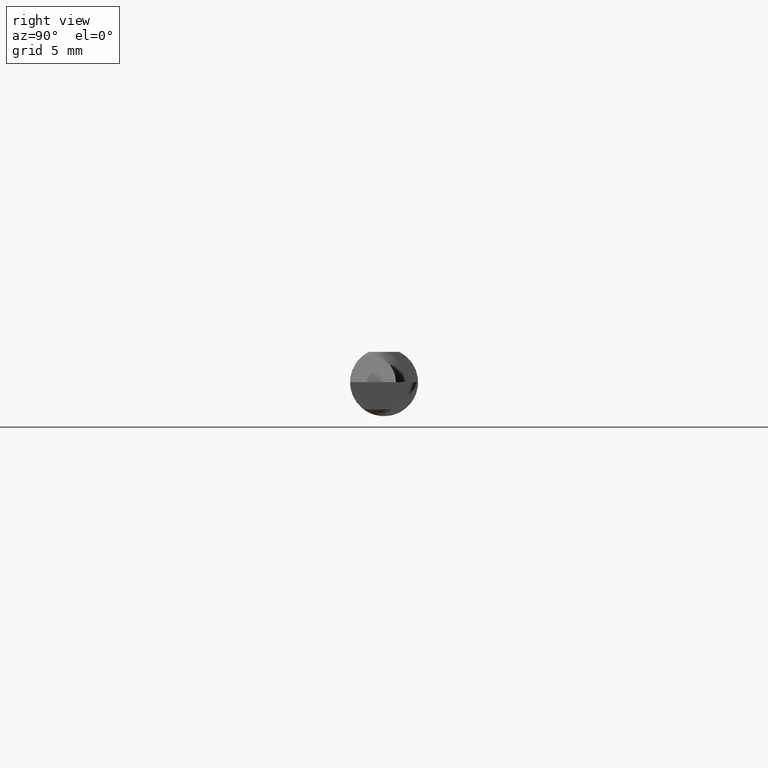
[diagram: clean part render]
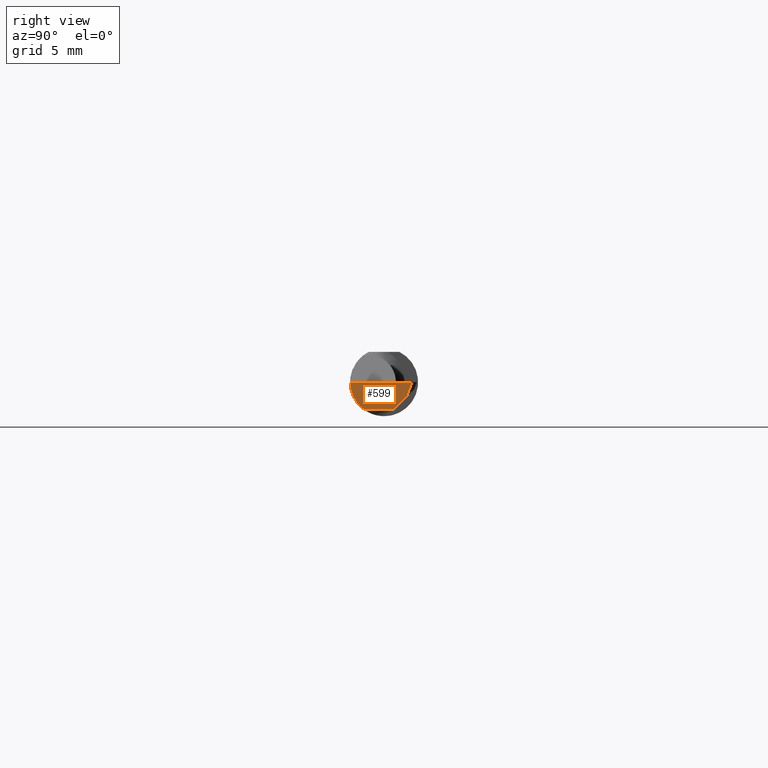
[diagram: same view with one face highlighted and labeled with its STEP entity id]
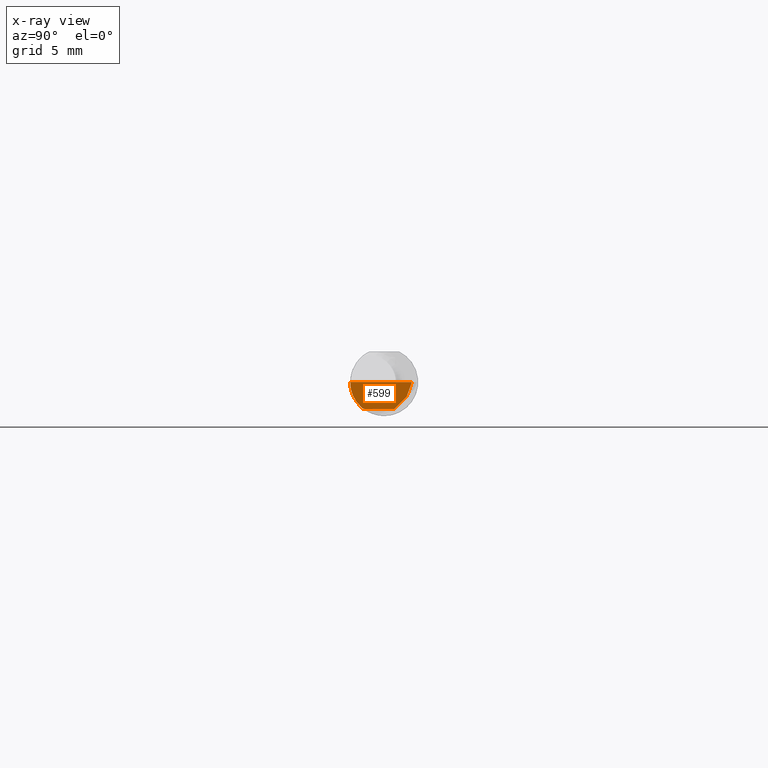
[diagram: x-ray of the same camera — body ghosted, the highlighted face saturated]
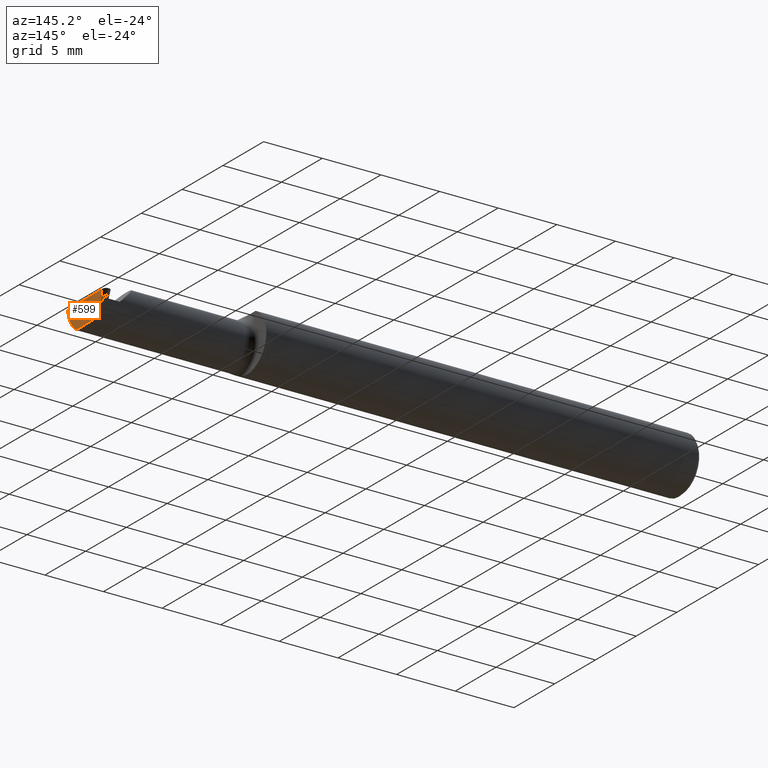
[diagram: same view with one face highlighted and labeled with its STEP entity id]
A machine part, right view. The second image highlights one B-rep face of the part: STEP entity #599.
The next image is the same camera in x-ray: the body ghosted, the highlighted face saturated — about 0% of this face is hidden behind the body in this view.
A second angle (auxiliary view) of the same face is appended — the face is thin or edge-on in the first view.
In plain terms, the highlighted planar face has unit normal (-0.9992, 0.0174, 0.0349).
Its self-contained STEP definition (entity closure, byte-faithful):
#10 = DIRECTION ( 'NONE',  ( -0.01745240643727441823, -0.9998476951563912696, 0.000000000000000000 ) ) ;
#16 = CARTESIAN_POINT ( 'NONE',  ( 1.996507080450274474, 0.02748456554894272708, -0.07500000000000002498 ) ) ;
#25 = CARTESIAN_POINT ( 'NONE',  ( 1.995069675717878299, -0.05810704225352106983, -0.07337936794867833123 ) ) ;
#43 = ORIENTED_EDGE ( 'NONE', *, *, #350, .F. ) ;
#54 = CARTESIAN_POINT ( 'NONE',  ( 1.999986840374342822, 0.07677130609030106967, 0.000000000000000000 ) ) ;
#55 = VERTEX_POINT ( 'NONE', #463 ) ;
#74 = CARTESIAN_POINT ( 'NONE',  ( 1.995192704155888785, -0.04781600192481509637, -0.07500000000000006661 ) ) ;
#77 = CARTESIAN_POINT ( 'NONE',  ( 1.995996405735428469, -0.09359999999999997489, -0.02910696448121681199 ) ) ;
#88 = CARTESIAN_POINT ( 'NONE',  ( 1.995069675717878299, -0.05810704225352106983, -0.07337936794867833123 ) ) ;
#98 = EDGE_CURVE ( 'NONE', #620, #123, #603, .T. ) ;
#123 = VERTEX_POINT ( 'NONE', #652 ) ;
#168 = DIRECTION ( 'NONE',  ( -0.03701368837992301264, -0.7066222423871552083, -0.7066222423871628688 ) ) ;
#174 = VECTOR ( 'NONE', #500, 39.37007874015747433 ) ;
#180 = ORIENTED_EDGE ( 'NONE', *, *, #340, .T. ) ;
#184 = VERTEX_POINT ( 'NONE', #54 ) ;
#207 = PLANE ( 'NONE',  #209 ) ;
#209 = AXIS2_PLACEMENT_3D ( 'NONE', #437, #559, #503 ) ;
#225 = DIRECTION ( 'NONE',  ( 0.03876062227022269990, 0.3417631236437463915, 0.9389864650134709390 ) ) ;
#226 = CARTESIAN_POINT ( 'NONE',  ( 1.995302472377616931, -0.08092595952420821026, -0.05530971394246247952 ) ) ;
#275 = EDGE_CURVE ( 'NONE', #325, #620, #401, .T. ) ;
#276 = ORIENTED_EDGE ( 'NONE', *, *, #622, .T. ) ;
#290 = CARTESIAN_POINT ( 'NONE',  ( 1.995283749808152374, -0.04259999999999973530, -0.07500000000000002498 ) ) ;
#293 = CARTESIAN_POINT ( 'NONE',  ( 1.997012998164632958, -0.09360000000000001652, 0.000000000000000000 ) ) ;
#299 = ORIENTED_EDGE ( 'NONE', *, *, #275, .F. ) ;
#325 = VERTEX_POINT ( 'NONE', #334 ) ;
#331 = VECTOR ( 'NONE', #168, 39.37007874015748143 ) ;
#334 = CARTESIAN_POINT ( 'NONE',  ( 1.998318014211375448, 0.06205680439066463272, -0.04042776115827773770 ) ) ;
#336 = ORIENTED_EDGE ( 'NONE', *, *, #98, .F. ) ;
#337 = LINE ( 'NONE', #396, #174 ) ;
#340 = EDGE_CURVE ( 'NONE', #391, #123, #392, .T. ) ;
#345 = EDGE_LOOP ( 'NONE', ( #299, #276, #375, #43, #180, #336 ) ) ;
#350 = EDGE_CURVE ( 'NONE', #391, #55, #611, .T. ) ;
#375 = ORIENTED_EDGE ( 'NONE', *, *, #656, .T. ) ;
#391 = VERTEX_POINT ( 'NONE', #88 ) ;
#392 =( BOUNDED_CURVE ( )  B_SPLINE_CURVE ( 3, ( #507, #397, #74, #290 ),
 .UNSPECIFIED., .F., .F. ) 
 B_SPLINE_CURVE_WITH_KNOTS ( ( 4, 4 ),
 ( 0.2552020043920343317, 0.4634648172052940329 ),
 .UNSPECIFIED. ) 
 CURVE ( )  GEOMETRIC_REPRESENTATION_ITEM ( )  RATIONAL_B_SPLINE_CURVE ( ( 1.000000000000000000, 0.9963888149483994816, 0.9963888149483994816, 1.000000000000000000 ) ) 
 REPRESENTATION_ITEM ( '' )  );
#396 = CARTESIAN_POINT ( 'NONE',  ( 1.999998056073120534, 0.07741385304294044756, 0.000000000000000000 ) ) ;
#397 = CARTESIAN_POINT ( 'NONE',  ( 1.995121087504817758, -0.05300374992736048979, -0.07445783144524577291 ) ) ;
#400 = LINE ( 'NONE', #660, #698 ) ;
#401 = LINE ( 'NONE', #450, #331 ) ;
#437 = CARTESIAN_POINT ( 'NONE',  ( 1.999998056073120534, 0.07741385304294044756, 0.000000000000000000 ) ) ;
#450 = CARTESIAN_POINT ( 'NONE',  ( 1.996701111497402481, 0.03118878038446752654, -0.07129578516447518388 ) ) ;
#463 = CARTESIAN_POINT ( 'NONE',  ( 1.997012998164632958, -0.09360000000000001652, 0.000000000000000000 ) ) ;
#491 = FACE_OUTER_BOUND ( 'NONE', #345, .T. ) ;
#500 = DIRECTION ( 'NONE',  ( -0.01745240643727442170, -0.9998476951563914916, 0.000000000000000000 ) ) ;
#503 = DIRECTION ( 'NONE',  ( 0.03490480639812536257, 0.000000000000000000, 0.9993906415863165194 ) ) ;
#507 = CARTESIAN_POINT ( 'NONE',  ( 1.995069675717878299, -0.05810704225352106983, -0.07337936794867833123 ) ) ;
#559 = DIRECTION ( 'NONE',  ( -0.9992386149554827179, 0.01744177490282107154, 0.03489949670250104552 ) ) ;
#595 = VECTOR ( 'NONE', #10, 39.37007874015748854 ) ;
#599 = ADVANCED_FACE ( 'NONE', ( #491 ), #207, .F. ) ;
#603 = LINE ( 'NONE', #648, #595 ) ;
#611 =( BOUNDED_CURVE ( )  B_SPLINE_CURVE ( 3, ( #25, #226, #77, #293 ),
 .UNSPECIFIED., .F., .F. ) 
 B_SPLINE_CURVE_WITH_KNOTS ( ( 4, 4 ),
 ( 0.2063001339125775657, 1.107331509589607910 ),
 .UNSPECIFIED. ) 
 CURVE ( )  GEOMETRIC_REPRESENTATION_ITEM ( )  RATIONAL_B_SPLINE_CURVE ( ( 1.000000000000000000, 0.9334817841311873199, 0.9334817841311873199, 1.000000000000000000 ) ) 
 REPRESENTATION_ITEM ( '' )  );
#620 = VERTEX_POINT ( 'NONE', #16 ) ;
#622 = EDGE_CURVE ( 'NONE', #325, #184, #400, .T. ) ;
#648 = CARTESIAN_POINT ( 'NONE',  ( 1.995320483157157598, -0.04049554784491223719, -0.07500000000000002498 ) ) ;
#652 = CARTESIAN_POINT ( 'NONE',  ( 1.995283749808152374, -0.04259999999999973530, -0.07500000000000002498 ) ) ;
#656 = EDGE_CURVE ( 'NONE', #184, #55, #337, .T. ) ;
#660 = CARTESIAN_POINT ( 'NONE',  ( 1.999995369012866231, 0.07684650545427940127, 0.0002066085544878474808 ) ) ;
#698 = VECTOR ( 'NONE', #225, 39.37007874015748854 ) ;